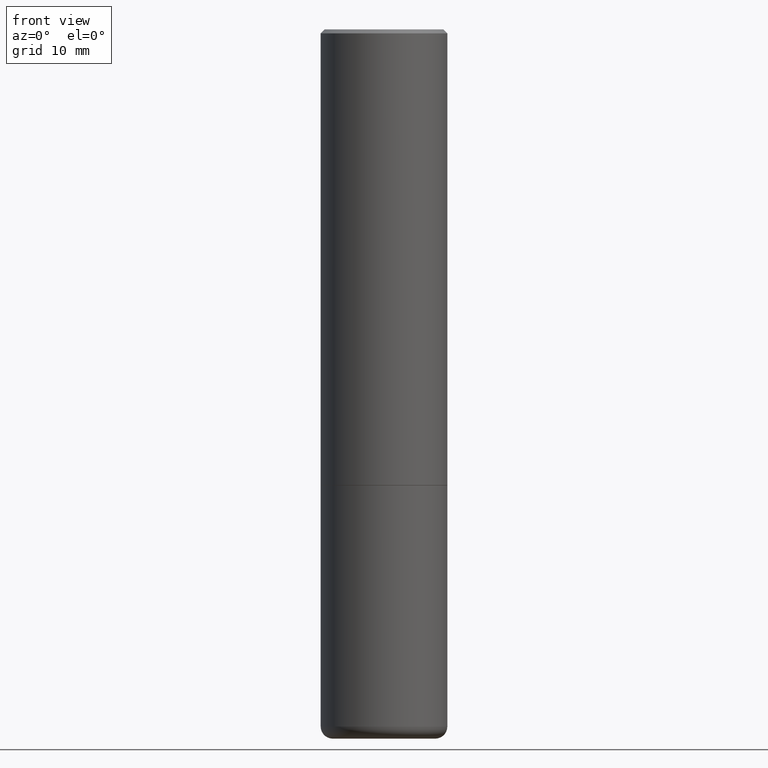
[diagram: clean part render]
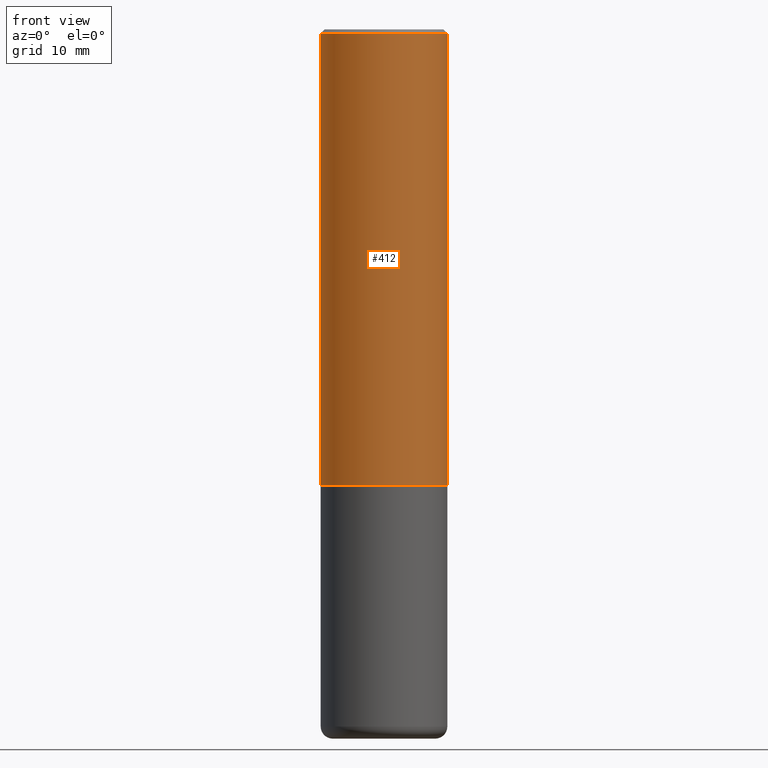
[diagram: same view with one face highlighted and labeled with its STEP entity id]
A machine part, front view. The second image highlights one B-rep face of the part: STEP entity #412.
In plain terms, the highlighted cylindrical surface (partial cylindrical patch) has radius 7.9375 mm, axis along (-0, 0, 1).
Its self-contained STEP definition (entity closure, byte-faithful):
#6 = LINE ( 'NONE', #11, #301 ) ;
#11 = CARTESIAN_POINT ( 'NONE',  ( 0.3125000000000000000, -2.182175836776958347E-15, 1.523805242436230075E-29 ) ) ;
#31 = CARTESIAN_POINT ( 'NONE',  ( 5.499859345110371740E-29, -7.852341531058233864E-15, -2.248999999999999666 ) ) ;
#33 = VERTEX_POINT ( 'NONE', #169 ) ;
#41 = CARTESIAN_POINT ( 'NONE',  ( -0.3124999999999998890, 2.112346210000094260E-15, -0.02000000000000006981 ) ) ;
#43 = LINE ( 'NONE', #270, #275 ) ;
#62 = VERTEX_POINT ( 'NONE', #73 ) ;
#73 = CARTESIAN_POINT ( 'NONE',  ( -0.3125000000000002220, -1.740639529667230767E-15, -2.248999999999999666 ) ) ;
#105 = CARTESIAN_POINT ( 'NONE',  ( 0.000000000000000000, 0.000000000000000000, 0.000000000000000000 ) ) ;
#107 = AXIS2_PLACEMENT_3D ( 'NONE', #31, #327, #153 ) ;
#123 = CIRCLE ( 'NONE', #243, 0.3124999999999998890 ) ;
#125 = ORIENTED_EDGE ( 'NONE', *, *, #274, .F. ) ;
#129 = CARTESIAN_POINT ( 'NONE',  ( 4.890937612370289799E-31, -6.982962677686315028E-17, -0.02000000000000006981 ) ) ;
#153 = DIRECTION ( 'NONE',  ( 1.000000000000000000, -6.982962677686266711E-15, 0.000000000000000000 ) ) ;
#158 = DIRECTION ( 'NONE',  ( -2.445468806185136877E-29, 3.491481338843145188E-15, 1.000000000000000000 ) ) ;
#169 = CARTESIAN_POINT ( 'NONE',  ( 0.3125000000000002220, -1.003451736783519379E-14, -2.248999999999999666 ) ) ;
#178 = CARTESIAN_POINT ( 'NONE',  ( 0.3124999999999998890, -2.213735251080466123E-15, -0.02000000000000006981 ) ) ;
#192 = ORIENTED_EDGE ( 'NONE', *, *, #244, .T. ) ;
#208 = EDGE_CURVE ( 'NONE', #62, #252, #43, .T. ) ;
#232 = DIRECTION ( 'NONE',  ( -2.445468806185136877E-29, 3.491481338843145188E-15, 1.000000000000000000 ) ) ;
#243 = AXIS2_PLACEMENT_3D ( 'NONE', #129, #358, #288 ) ;
#244 = EDGE_CURVE ( 'NONE', #33, #387, #6, .T. ) ;
#252 = VERTEX_POINT ( 'NONE', #41 ) ;
#263 = ORIENTED_EDGE ( 'NONE', *, *, #265, .T. ) ;
#265 = EDGE_CURVE ( 'NONE', #62, #33, #407, .T. ) ;
#270 = CARTESIAN_POINT ( 'NONE',  ( -0.3125000000000000000, 2.220446049250313081E-15, -1.537167215704658232E-29 ) ) ;
#274 = EDGE_CURVE ( 'NONE', #252, #387, #123, .T. ) ;
#275 = VECTOR ( 'NONE', #158, 39.37007874015748143 ) ;
#277 = FACE_OUTER_BOUND ( 'NONE', #289, .T. ) ;
#284 = AXIS2_PLACEMENT_3D ( 'NONE', #105, #334, #405 ) ;
#288 = DIRECTION ( 'NONE',  ( 1.000000000000000000, -6.982962677686266711E-15, 0.000000000000000000 ) ) ;
#289 = EDGE_LOOP ( 'NONE', ( #330, #263, #192, #125 ) ) ;
#301 = VECTOR ( 'NONE', #232, 39.37007874015748143 ) ;
#327 = DIRECTION ( 'NONE',  ( -2.445468806185136597E-29, 3.491481338843145583E-15, 1.000000000000000000 ) ) ;
#330 = ORIENTED_EDGE ( 'NONE', *, *, #208, .F. ) ;
#334 = DIRECTION ( 'NONE',  ( -2.445468806185136597E-29, 3.491481338843145583E-15, 1.000000000000000000 ) ) ;
#342 = CYLINDRICAL_SURFACE ( 'NONE', #284, 0.3125000000000000000 ) ;
#358 = DIRECTION ( 'NONE',  ( -2.445468806185136597E-29, 3.491481338843145583E-15, 1.000000000000000000 ) ) ;
#387 = VERTEX_POINT ( 'NONE', #178 ) ;
#405 = DIRECTION ( 'NONE',  ( 1.000000000000000000, -6.982962677686266711E-15, 4.876176775795936353E-29 ) ) ;
#407 = CIRCLE ( 'NONE', #107, 0.3125000000000002220 ) ;
#412 = ADVANCED_FACE ( 'NONE', ( #277 ), #342, .T. ) ;